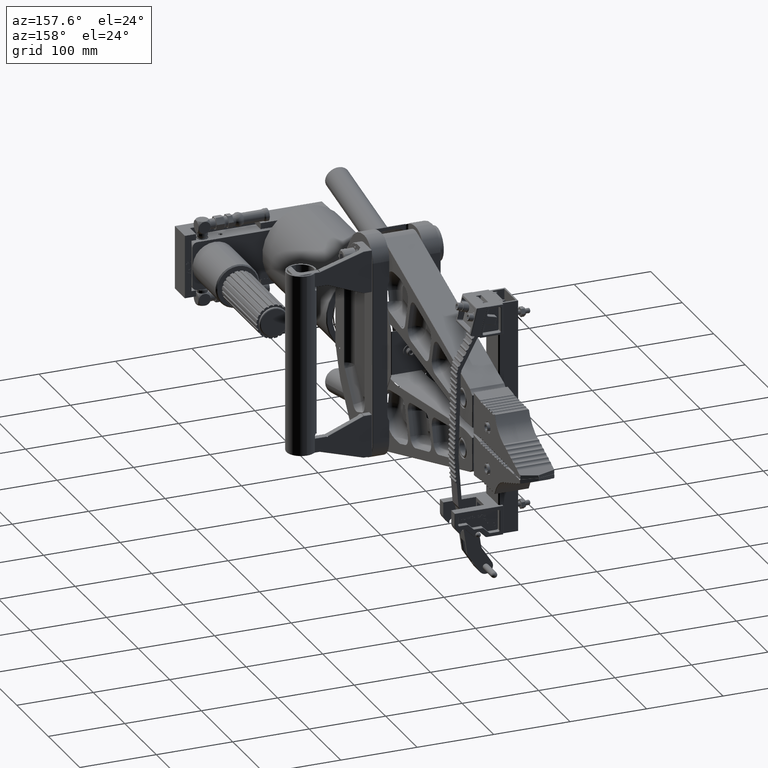
[diagram: clean part render]
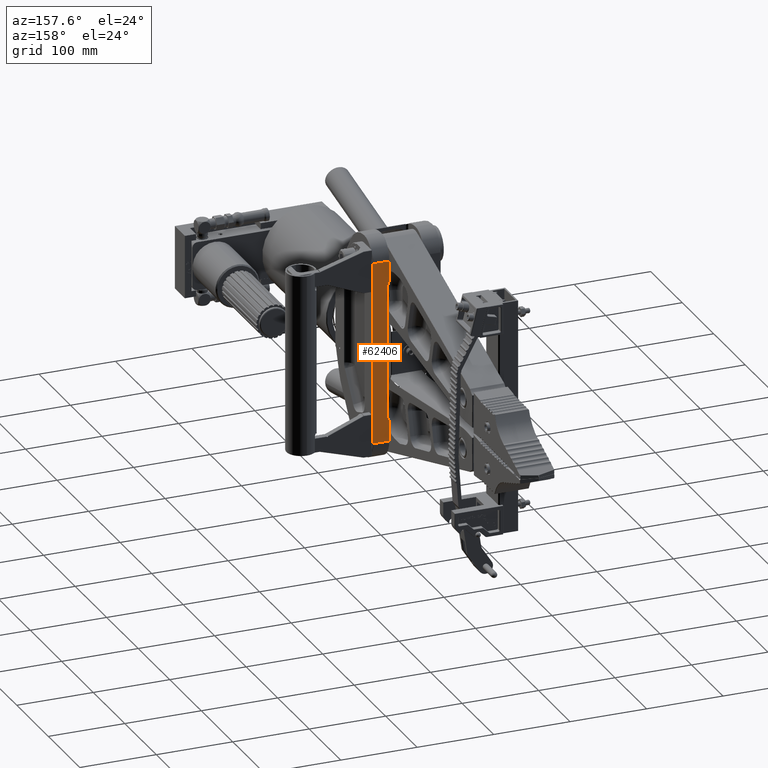
[diagram: same view with one face highlighted and labeled with its STEP entity id]
A machine part, auxiliary view. The second image highlights one B-rep face of the part: STEP entity #62406.
In plain terms, the highlighted planar face has unit normal (0, -1, 0).
Its self-contained STEP definition (entity closure, byte-faithful):
#15435 = AXIS2_PLACEMENT_3D ( 'NONE', #31740, #31753, #31755 ) ;
#15472 = AXIS2_PLACEMENT_3D ( 'NONE', #32286, #32308, #32310 ) ;
#23559 = FACE_OUTER_BOUND ( 'NONE', #57605, .T. ) ;
#31740 = CARTESIAN_POINT ( 'NONE',  ( 0.3560000000000012000, 4.636999999999999600, 3.296974086389505400 ) ) ;
#31753 = DIRECTION ( 'NONE',  ( 0.0000000000000000000, -1.000000000000000000, 0.0000000000000000000 ) ) ;
#31755 = DIRECTION ( 'NONE',  ( 1.000000000000000000, 0.0000000000000000000, 0.0000000000000000000 ) ) ;
#32127 = CARTESIAN_POINT ( 'NONE',  ( 0.9030000000000022500, 4.636999999999999600, 4.687499999999998200 ) ) ;
#32129 = DIRECTION ( 'NONE',  ( 3.673819061467132300E-016, 0.0000000000000000000, 1.000000000000000000 ) ) ;
#32157 = CARTESIAN_POINT ( 'NONE',  ( 0.9959999999999990000, 4.636999999999999600, -4.687500000000000900 ) ) ;
#32183 = DIRECTION ( 'NONE',  ( 3.999138165148637200E-016, 0.0000000000000000000, 1.000000000000000000 ) ) ;
#32286 = CARTESIAN_POINT ( 'NONE',  ( 0.3559999999999985400, 4.636999999999999600, -3.296974086389505800 ) ) ;
#32303 = CARTESIAN_POINT ( 'NONE',  ( 1.734999999999998100, 4.636999999999999600, -4.687500000000000900 ) ) ;
#32305 = DIRECTION ( 'NONE',  ( -3.673819061467132300E-016, 0.0000000000000000000, -1.000000000000000000 ) ) ;
#32308 = DIRECTION ( 'NONE',  ( 0.0000000000000000000, -1.000000000000000000, 0.0000000000000000000 ) ) ;
#32310 = DIRECTION ( 'NONE',  ( 1.000000000000000000, 0.0000000000000000000, 0.0000000000000000000 ) ) ;
#32313 = CARTESIAN_POINT ( 'NONE',  ( -1.750000000000001600, 4.636999999999999600, -4.687500000000000000 ) ) ;
#32315 = DIRECTION ( 'NONE',  ( 1.000000000000000000, -0.0000000000000000000, -3.673819061467132300E-016 ) ) ;
#33170 = CIRCLE ( 'NONE', #15435, 0.6400000000000002400 ) ;
#33215 = LINE ( 'NONE', #32127, #33216 ) ;
#33216 = VECTOR ( 'NONE', #32129, 39.37007874015748100 ) ;
#33217 = VECTOR ( 'NONE', #32183, 39.37007874015748100 ) ;
#33228 = LINE ( 'NONE', #32157, #33217 ) ;
#33239 = LINE ( 'NONE', #32303, #33245 ) ;
#33241 = LINE ( 'NONE', #32313, #33248 ) ;
#33245 = VECTOR ( 'NONE', #32305, 39.37007874015748100 ) ;
#33248 = VECTOR ( 'NONE', #32315, 39.37007874015748100 ) ;
#33252 = CIRCLE ( 'NONE', #15472, 0.6400000000000002400 ) ;
#33265 = LINE ( 'NONE', #33902, #33266 ) ;
#33266 = VECTOR ( 'NONE', #33903, 39.37007874015748100 ) ;
#33271 = LINE ( 'NONE', #33943, #33277 ) ;
#33277 = VECTOR ( 'NONE', #33946, 39.37007874015748100 ) ;
#33902 = CARTESIAN_POINT ( 'NONE',  ( -1.749999999999998200, 4.636999999999999600, 4.687499999999999100 ) ) ;
#33903 = DIRECTION ( 'NONE',  ( 1.000000000000000000, -0.0000000000000000000, -3.673819061467132300E-016 ) ) ;
#33943 = CARTESIAN_POINT ( 'NONE',  ( 0.9029999999999991400, 4.636999999999999600, -3.625000000000000900 ) ) ;
#33946 = DIRECTION ( 'NONE',  ( 3.673819061467132300E-016, 0.0000000000000000000, 1.000000000000000000 ) ) ;
#56159 = CARTESIAN_POINT ( 'NONE',  ( -1.750000000000001600, 4.636999999999999600, -4.687500000000000000 ) ) ;
#56164 = PLANE ( 'NONE',  #57589 ) ;
#56169 = DIRECTION ( 'NONE',  ( 0.0000000000000000000, -1.000000000000000000, 0.0000000000000000000 ) ) ;
#56170 = DIRECTION ( 'NONE',  ( 1.000000000000000000, 0.0000000000000000000, -3.673819061467132300E-016 ) ) ;
#57589 = AXIS2_PLACEMENT_3D ( 'NONE', #56159, #56169, #56170 ) ;
#57605 = EDGE_LOOP ( 'NONE', ( #93092, #93089, #93088, #93086, #93084, #93082, #93080, #93078 ) ) ;
#62406 = ADVANCED_FACE ( 'NONE', ( #23559 ), #56164, .F. ) ;
#73495 = VERTEX_POINT ( 'NONE', #85062 ) ;
#73497 = VERTEX_POINT ( 'NONE', #85064 ) ;
#73499 = VERTEX_POINT ( 'NONE', #85066 ) ;
#73511 = VERTEX_POINT ( 'NONE', #85078 ) ;
#73512 = VERTEX_POINT ( 'NONE', #85079 ) ;
#73515 = VERTEX_POINT ( 'NONE', #85082 ) ;
#73519 = VERTEX_POINT ( 'NONE', #85086 ) ;
#73524 = VERTEX_POINT ( 'NONE', #85091 ) ;
#85062 = CARTESIAN_POINT ( 'NONE',  ( 0.9029999999999986900, 4.636999999999999600, -4.687500000000000900 ) ) ;
#85064 = CARTESIAN_POINT ( 'NONE',  ( 0.9030000000000018000, 4.636999999999999600, 3.629225497221723700 ) ) ;
#85066 = CARTESIAN_POINT ( 'NONE',  ( 1.734999999999998100, 4.636999999999999600, -4.687500000000000900 ) ) ;
#85078 = CARTESIAN_POINT ( 'NONE',  ( 0.9030000000000022500, 4.636999999999999600, 4.687499999999998200 ) ) ;
#85079 = CARTESIAN_POINT ( 'NONE',  ( 0.9029999999999991400, 4.636999999999999600, -3.629225497221724600 ) ) ;
#85082 = CARTESIAN_POINT ( 'NONE',  ( 0.9959999999999990000, 4.636999999999999600, -3.296974086389506300 ) ) ;
#85086 = CARTESIAN_POINT ( 'NONE',  ( 1.735000000000001200, 4.636999999999999600, 4.687499999999998200 ) ) ;
#85091 = CARTESIAN_POINT ( 'NONE',  ( 0.9960000000000014400, 4.636999999999999600, 3.296974086389504500 ) ) ;
#93078 = ORIENTED_EDGE ( 'NONE', *, *, #97530, .T. ) ;
#93080 = ORIENTED_EDGE ( 'NONE', *, *, #97489, .T. ) ;
#93082 = ORIENTED_EDGE ( 'NONE', *, *, #97539, .T. ) ;
#93084 = ORIENTED_EDGE ( 'NONE', *, *, #97555, .T. ) ;
#93086 = ORIENTED_EDGE ( 'NONE', *, *, #97575, .T. ) ;
#93088 = ORIENTED_EDGE ( 'NONE', *, *, #97556, .F. ) ;
#93089 = ORIENTED_EDGE ( 'NONE', *, *, #97554, .T. ) ;
#93092 = ORIENTED_EDGE ( 'NONE', *, *, #97566, .T. ) ;
#97489 = EDGE_CURVE ( 'NONE', #73524, #73497, #33170, .T. ) ;
#97530 = EDGE_CURVE ( 'NONE', #73497, #73511, #33215, .T. ) ;
#97539 = EDGE_CURVE ( 'NONE', #73515, #73524, #33228, .T. ) ;
#97554 = EDGE_CURVE ( 'NONE', #73519, #73499, #33239, .T. ) ;
#97555 = EDGE_CURVE ( 'NONE', #73512, #73515, #33252, .T. ) ;
#97556 = EDGE_CURVE ( 'NONE', #73495, #73499, #33241, .T. ) ;
#97566 = EDGE_CURVE ( 'NONE', #73511, #73519, #33265, .T. ) ;
#97575 = EDGE_CURVE ( 'NONE', #73495, #73512, #33271, .T. ) ;